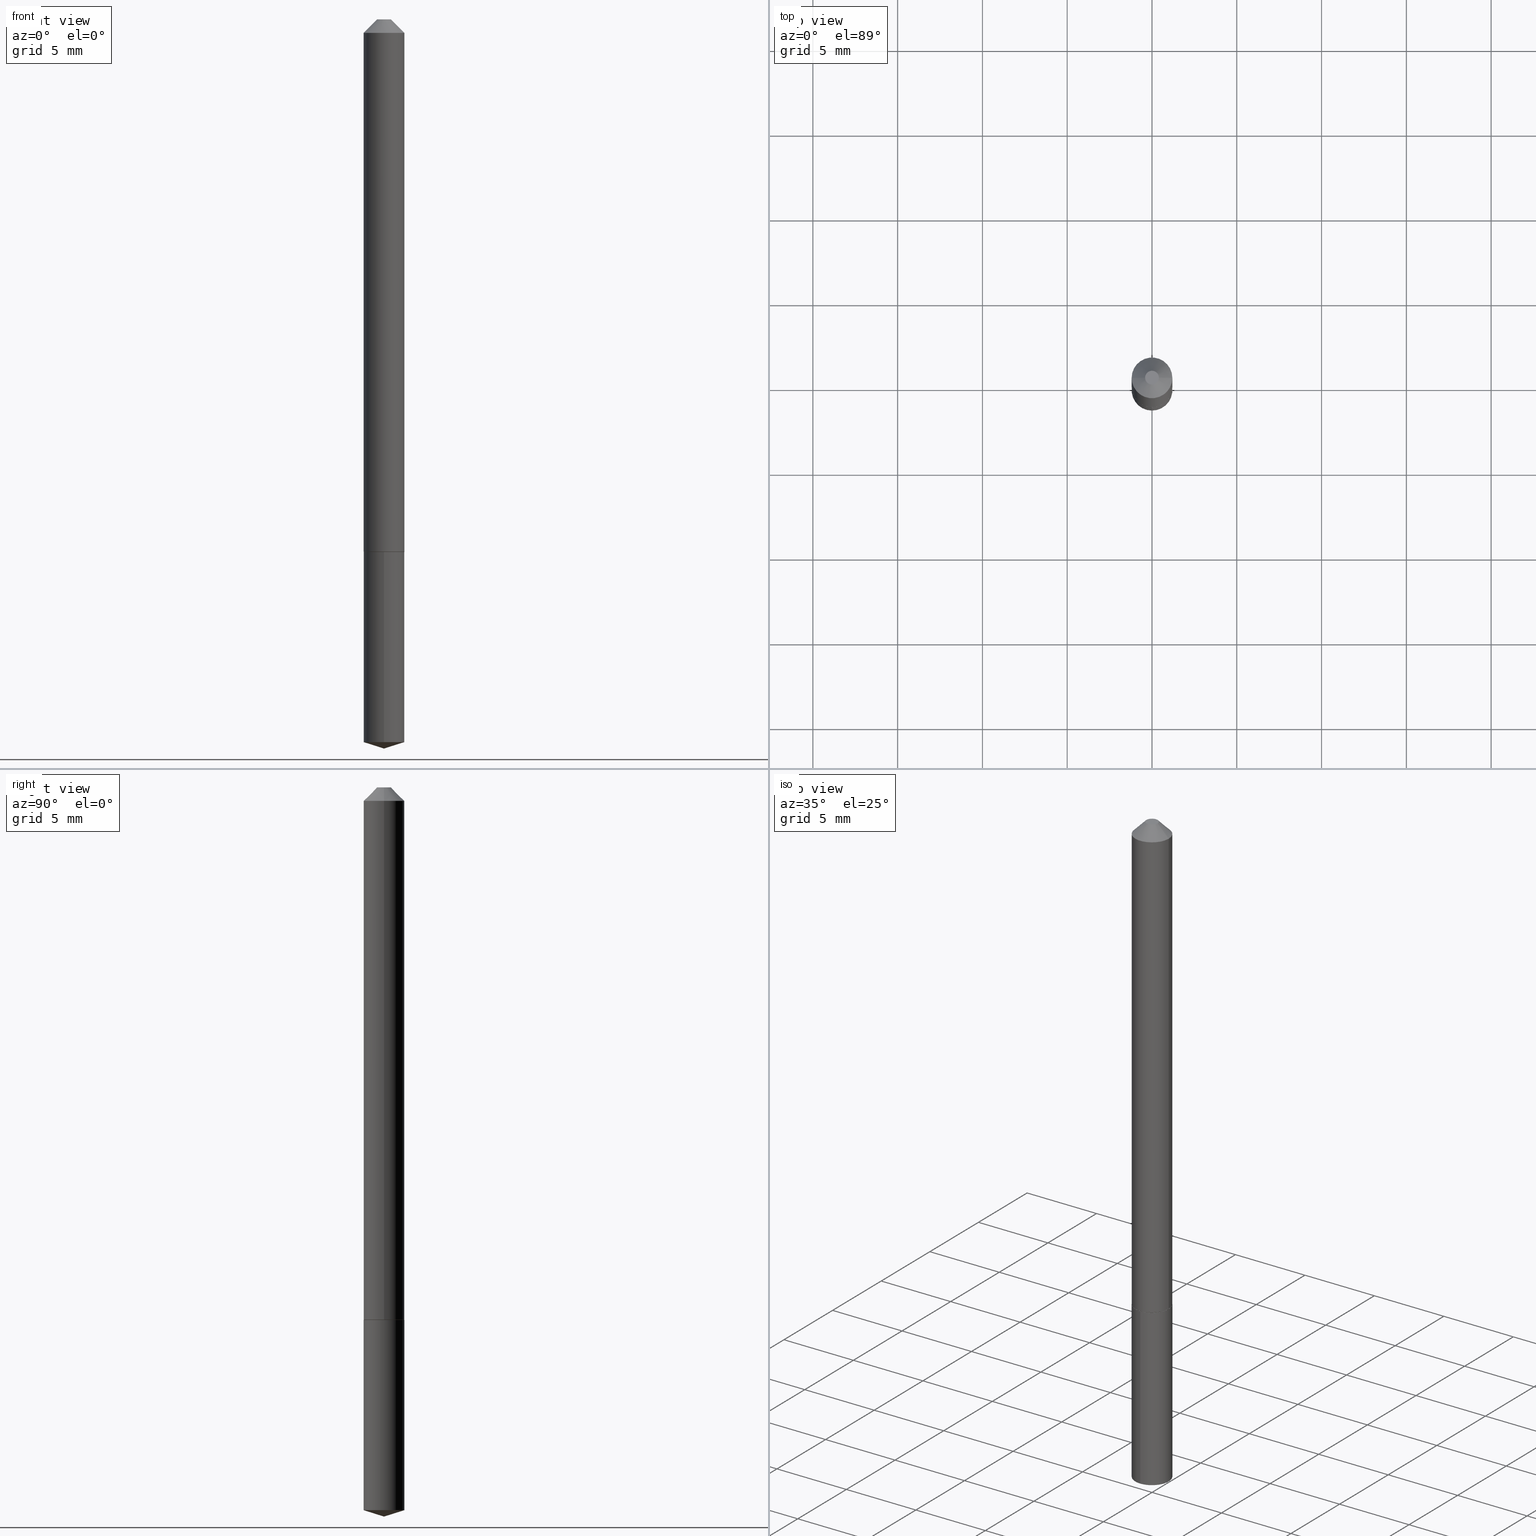
[diagram: canonical four-view strip — front | top / right | iso, engineering-drawing reading convention]
A machine part, canonical four-view strip (front | top / right | iso — engineering-drawing reading convention). The complete STEP part file that produces these views, byte-faithful:
ISO-10303-21;
HEADER;
FILE_DESCRIPTION (( 'STEP AP203' ),
    '1' );
FILE_NAME ('62059.STEP',
    '2024-04-23T05:19:33',
    ( '' ),
    ( '' ),
    'SwSTEP 2.0',
    'SolidWorks 2023',
    '' );
FILE_SCHEMA (( 'CONFIG_CONTROL_DESIGN' ));
ENDSEC;

DATA;
#1 = DIMENSIONAL_EXPONENTS ( 1.000000000000000000, 0.000000000000000000, 0.000000000000000000, 0.000000000000000000, 0.000000000000000000, 0.000000000000000000, 0.000000000000000000 ) ;
#2 = DIRECTION ( 'NONE',  ( 6.982962677686265922E-15, 1.000000000000000000, -3.491498537311690917E-15 ) ) ;
#3 = AXIS2_PLACEMENT_3D ( 'NONE', #358, #325, #177 ) ;
#4 = DIRECTION ( 'NONE',  ( -2.445456796558740002E-29, 3.491498537311690917E-15, 1.000000000000000000 ) ) ;
#5 = CARTESIAN_POINT ( 'NONE',  ( -3.299449865206457842E-16, -0.04725000000000431633, -1.236199999999999966 ) ) ;
#6 = ADVANCED_FACE ( 'NONE', ( #320 ), #53, .F. ) ;
#7 = CIRCLE ( 'NONE', #246, 0.04724999999999999339 ) ;
#8 = ORIENTED_EDGE ( 'NONE', *, *, #334, .T. ) ;
#9 = DIRECTION ( 'NONE',  ( 2.445456796558739722E-29, -3.491498537311690917E-15, -1.000000000000000000 ) ) ;
#10 = VERTEX_POINT ( 'NONE', #230 ) ;
#11 = CARTESIAN_POINT ( 'NONE',  ( 3.021865803802974359E-29, -4.314423490408476680E-15, -1.235700000000000465 ) ) ;
#12 = ORIENTED_EDGE ( 'NONE', *, *, #49, .F. ) ;
#13 = LOCAL_TIME ( 1, 19, 33.00000000000000000, #280 ) ;
#14 = ORIENTED_EDGE ( 'NONE', *, *, #327, .F. ) ;
#15 = ORIENTED_EDGE ( 'NONE', *, *, #297, .T. ) ;
#16 = EDGE_CURVE ( 'NONE', #10, #74, #29, .T. ) ;
#17 = CARTESIAN_POINT ( 'NONE',  ( -3.299449865206457842E-16, -0.04725000000000431633, -1.236199999999999966 ) ) ;
#18 = FACE_OUTER_BOUND ( 'NONE', #366, .T. ) ;
#19 = APPROVAL_PERSON_ORGANIZATION ( #324, #196, #388 ) ;
#20 = EDGE_CURVE ( 'NONE', #375, #41, #322, .T. ) ;
#21 = DIRECTION ( 'NONE',  ( 2.445468806185136597E-29, -3.491481338843145583E-15, -1.000000000000000000 ) ) ;
#22 = ADVANCED_FACE ( 'NONE', ( #55 ), #238, .T. ) ;
#23 = APPROVAL_STATUS ( 'not_yet_approved' ) ;
#24 = CARTESIAN_POINT ( 'NONE',  ( 3.023088538206066600E-29, -4.316169231077897395E-15, -1.236200000000000410 ) ) ;
#25 = CARTESIAN_POINT ( 'NONE',  ( 3.357314426466883117E-16, 0.04724999999999567740, -1.236200000000000632 ) ) ;
#26 = AXIS2_PLACEMENT_3D ( 'NONE', #372, #286, #279 ) ;
#27 = DATE_AND_TIME ( #31, #48 ) ;
#28 = ADVANCED_BREP_SHAPE_REPRESENTATION ( '62059', ( #273, #269, #26 ), #209 ) ;
#29 = LINE ( 'NONE', #169, #241 ) ;
#30 = FACE_OUTER_BOUND ( 'NONE', #139, .T. ) ;
#31 = CALENDAR_DATE ( 2024, 23, 4 ) ;
#32 = CARTESIAN_POINT ( 'NONE',  ( 7.642090019328602662E-31, -1.091087918388490267E-16, -0.03125000000000020817 ) ) ;
#33 = CARTESIAN_POINT ( 'NONE',  ( 3.023088538206066600E-29, -4.316169231077897395E-15, -1.236200000000000410 ) ) ;
#34 = DIRECTION ( 'NONE',  ( -2.445468806185136597E-29, 3.491481338843145583E-15, 1.000000000000000000 ) ) ;
#35 = VECTOR ( 'NONE', #46, 39.37007874015748143 ) ;
#36 = APPROVAL_PERSON_ORGANIZATION ( #131, #251, #374 ) ;
#37 = VERTEX_POINT ( 'NONE', #389 ) ;
#38 = EDGE_CURVE ( 'NONE', #97, #37, #161, .T. ) ;
#39 = ORIENTED_EDGE ( 'NONE', *, *, #285, .T. ) ;
#40 = DIRECTION ( 'NONE',  ( 1.000000000000000000, -6.982962677686266711E-15, 4.876172707875571814E-29 ) ) ;
#41 = VERTEX_POINT ( 'NONE', #258 ) ;
#42 = LENGTH_MEASURE_WITH_UNIT ( LENGTH_MEASURE( 0.02539999999999999897 ), #45 );
#43 = AXIS2_PLACEMENT_3D ( 'NONE', #353, #144, #108 ) ;
#44 = EDGE_LOOP ( 'NONE', ( #68, #208, #268 ) ) ;
#45 =( LENGTH_UNIT ( ) NAMED_UNIT ( * ) SI_UNIT ( $, .METRE. ) );
#46 = DIRECTION ( 'NONE',  ( 0.7071067811865414665, -2.468850131082193557E-15, 0.7071067811865535679 ) ) ;
#47 = DIRECTION ( 'NONE',  ( 1.000000000000000000, -6.982962677686266711E-15, 4.876176775795936353E-29 ) ) ;
#48 = LOCAL_TIME ( 1, 19, 33.00000000000000000, #295 ) ;
#49 = EDGE_CURVE ( 'NONE', #155, #183, #254, .T. ) ;
#50 = APPROVAL_DATE_TIME ( #317, #170 ) ;
#51 = DIRECTION ( 'NONE',  ( -1.000000000000000000, 6.982962677686266711E-15, 0.000000000000000000 ) ) ;
#52 = DATE_AND_TIME ( #307, #143 ) ;
#53 = PLANE ( 'NONE',  #57 ) ;
#54 = PRODUCT_DEFINITION_SHAPE ( 'NONE', 'NONE',  #321 ) ;
#55 = FACE_OUTER_BOUND ( 'NONE', #274, .T. ) ;
#56 = CIRCLE ( 'NONE', #135, 0.04725000000000000727 ) ;
#57 = AXIS2_PLACEMENT_3D ( 'NONE', #168, #291, #347 ) ;
#58 = DIRECTION ( 'NONE',  ( 1.000000000000000000, -6.982962677686264344E-15, 0.000000000000000000 ) ) ;
#59 = COORDINATED_UNIVERSAL_TIME_OFFSET ( 5, 0, .BEHIND. ) ;
#60 = CARTESIAN_POINT ( 'NONE',  ( -5.839929314523175409E-48, 8.337871319499082469E-34, 2.388061258337334140E-19 ) ) ;
#61 = LINE ( 'NONE', #231, #292 ) ;
#62 = EDGE_CURVE ( 'NONE', #132, #37, #218, .T. ) ;
#63 = CC_DESIGN_SECURITY_CLASSIFICATION ( #225, ( #182 ) ) ;
#64 = DIRECTION ( 'NONE',  ( -2.445456796558740002E-29, 3.491498537311690917E-15, 1.000000000000000000 ) ) ;
#65 = ORIENTED_EDGE ( 'NONE', *, *, #327, .T. ) ;
#66 = ORIENTED_EDGE ( 'NONE', *, *, #16, .F. ) ;
#67 = CIRCLE ( 'NONE', #386, 0.01599999999999999686 ) ;
#68 = ORIENTED_EDGE ( 'NONE', *, *, #20, .F. ) ;
#69 = DIRECTION ( 'NONE',  ( -2.445468806185136597E-29, 3.491481338843145583E-15, 1.000000000000000000 ) ) ;
#70 = EDGE_LOOP ( 'NONE', ( #12, #126 ) ) ;
#71 = DIRECTION ( 'NONE',  ( -2.445456796558740002E-29, 3.491498537311690917E-15, 1.000000000000000000 ) ) ;
#72 = EDGE_LOOP ( 'NONE', ( #66, #8, #330, #250 ) ) ;
#73 =( CONVERSION_BASED_UNIT ( 'INCH', #42 ) LENGTH_UNIT ( ) NAMED_UNIT ( #1 ) );
#74 = VERTEX_POINT ( 'NONE', #25 ) ;
#75 = CONICAL_SURFACE ( 'NONE', #261, 0.04725000000000015299, 0.7853981633974397303 ) ;
#76 = CIRCLE ( 'NONE', #310, 0.04675000000000025663 ) ;
#77 = DIRECTION ( 'NONE',  ( -2.445468806185136597E-29, 3.491481338843145583E-15, 1.000000000000000000 ) ) ;
#78 = DIRECTION ( 'NONE',  ( -2.445468806185136597E-29, 3.491481338843145583E-15, 1.000000000000000000 ) ) ;
#79 = ADVANCED_FACE ( 'NONE', ( #262 ), #124, .T. ) ;
#80 = DIRECTION ( 'NONE',  ( 1.000000000000000000, -6.982962677686264344E-15, 0.000000000000000000 ) ) ;
#81 = CYLINDRICAL_SURFACE ( 'NONE', #301, 0.04725000000000006972 ) ;
#82 = COORDINATED_UNIVERSAL_TIME_OFFSET ( 5, 0, .BEHIND. ) ;
#83 = FACE_OUTER_BOUND ( 'NONE', #248, .T. ) ;
#84 = AXIS2_PLACEMENT_3D ( 'NONE', #121, #9, #2 ) ;
#85 = AXIS2_PLACEMENT_3D ( 'NONE', #382, #171, #51 ) ;
#86 = DIRECTION ( 'NONE',  ( -2.445456796558740002E-29, 3.491498537311690917E-15, 1.000000000000000000 ) ) ;
#87 = DIRECTION ( 'NONE',  ( -1.000000000000000000, 6.982962677686266711E-15, 0.000000000000000000 ) ) ;
#88 = ADVANCED_FACE ( 'NONE', ( #83 ), #200, .T. ) ;
#89 = DIRECTION ( 'NONE',  ( -2.445468806185136877E-29, 3.491481338843145188E-15, 1.000000000000000000 ) ) ;
#90 = CIRCLE ( 'NONE', #228, 0.01599999999999999686 ) ;
#91 = DIRECTION ( 'NONE',  ( -2.445468806185136597E-29, 3.491481338843145583E-15, 1.000000000000000000 ) ) ;
#92 = EDGE_CURVE ( 'NONE', #183, #155, #76, .T. ) ;
#93 = DIRECTION ( 'NONE',  ( -6.982962677686265922E-15, -1.000000000000000000, 5.781688875479922944E-15 ) ) ;
#94 = VERTEX_POINT ( 'NONE', #293 ) ;
#95 = CONICAL_SURFACE ( 'NONE', #312, 0.04725000000000015299, 0.7853981633974397303 ) ;
#96 = EDGE_CURVE ( 'NONE', #155, #244, #191, .T. ) ;
#97 = VERTEX_POINT ( 'NONE', #284 ) ;
#98 = DIRECTION ( 'NONE',  ( -2.445468806185136597E-29, 3.491481338843145583E-15, 1.000000000000000000 ) ) ;
#99 = ORIENTED_EDGE ( 'NONE', *, *, #359, .F. ) ;
#100 = ORIENTED_EDGE ( 'NONE', *, *, #369, .F. ) ;
#101 = PRODUCT_RELATED_PRODUCT_CATEGORY ( 'detail', '', ( #112 ) ) ;
#102 = CALENDAR_DATE ( 2024, 23, 4 ) ;
#103 = ORIENTED_EDGE ( 'NONE', *, *, #190, .T. ) ;
#104 = ORIENTED_EDGE ( 'NONE', *, *, #62, .F. ) ;
#105 = ADVANCED_FACE ( 'NONE', ( #18 ), #136, .T. ) ;
#106 = ORIENTED_EDGE ( 'NONE', *, *, #233, .T. ) ;
#107 = PERSON_AND_ORGANIZATION ( #336, #287 ) ;
#108 = DIRECTION ( 'NONE',  ( 1.000000000000000000, -6.982962677686266711E-15, 0.000000000000000000 ) ) ;
#109 = PERSON_AND_ORGANIZATION ( #336, #287 ) ;
#110 = DIRECTION ( 'NONE',  ( 0.7071067811865452413, -7.319954787623248157E-15, -0.7071067811865497932 ) ) ;
#111 = VECTOR ( 'NONE', #198, 39.37007874015748854 ) ;
#112 = PRODUCT ( '62059', '62059', '', ( #247 ) ) ;
#113 = PERSON_AND_ORGANIZATION_ROLE ( 'design_supplier' ) ;
#114 = CARTESIAN_POINT ( 'NONE',  ( 7.642090019328602662E-31, -1.091087918388490267E-16, -0.03125000000000020817 ) ) ;
#115 = DIRECTION ( 'NONE',  ( -2.445468806185136597E-29, 3.491481338843145583E-15, 1.000000000000000000 ) ) ;
#116 = ADVANCED_FACE ( 'NONE', ( #220 ), #81, .T. ) ;
#117 = CARTESIAN_POINT ( 'NONE',  ( -0.01599999999999999686, 1.662817987624036876E-16, 2.388061258327615898E-19 ) ) ;
#118 = VECTOR ( 'NONE', #243, 39.37007874015748143 ) ;
#119 = LINE ( 'NONE', #236, #302 ) ;
#120 = EDGE_CURVE ( 'NONE', #94, #97, #288, .T. ) ;
#121 = CARTESIAN_POINT ( 'NONE',  ( 3.023088538206066600E-29, -4.316169231077897395E-15, -1.236200000000000410 ) ) ;
#122 = VECTOR ( 'NONE', #110, 39.37007874015748143 ) ;
#123 = LOCAL_TIME ( 1, 19, 33.00000000000000000, #82 ) ;
#124 = CONICAL_SURFACE ( 'NONE', #387, 0.04725000000000000727, 0.7853981633974450594 ) ;
#125 = CC_DESIGN_PERSON_AND_ORGANIZATION_ASSIGNMENT ( #109, #226, ( #182 ) ) ;
#126 = ORIENTED_EDGE ( 'NONE', *, *, #92, .F. ) ;
#127 = DIRECTION ( 'NONE',  ( 2.438088387897960049E-29, -3.491481338843145188E-15, -1.000000000000000000 ) ) ;
#128 = CIRCLE ( 'NONE', #371, 0.04725000000000015299 ) ;
#129 = CC_DESIGN_DATE_AND_TIME_ASSIGNMENT ( #27, #381, ( #225 ) ) ;
#130 = ORIENTED_EDGE ( 'NONE', *, *, #20, .T. ) ;
#131 = PERSON_AND_ORGANIZATION ( #336, #287 ) ;
#132 = VERTEX_POINT ( 'NONE', #117 ) ;
#133 = ORIENTED_EDGE ( 'NONE', *, *, #350, .T. ) ;
#134 = PERSON_AND_ORGANIZATION ( #336, #287 ) ;
#135 = AXIS2_PLACEMENT_3D ( 'NONE', #32, #184, #277 ) ;
#136 = CYLINDRICAL_SURFACE ( 'NONE', #207, 0.04724999999999999339 ) ;
#137 = AXIS2_PLACEMENT_3D ( 'NONE', #33, #275, #93 ) ;
#138 = CARTESIAN_POINT ( 'NONE',  ( 4.103496565190980497E-29, -5.858720729524305573E-15, -1.678002132225468346 ) ) ;
#139 = EDGE_LOOP ( 'NONE', ( #15, #260 ) ) ;
#140 = CARTESIAN_POINT ( 'NONE',  ( 3.023088538206066600E-29, -4.316169231077897395E-15, -1.236200000000000410 ) ) ;
#141 = CARTESIAN_POINT ( 'NONE',  ( 3.023088538206066600E-29, -4.316169231077897395E-15, -1.236200000000000410 ) ) ;
#142 = EDGE_CURVE ( 'NONE', #94, #132, #90, .T. ) ;
#143 = LOCAL_TIME ( 1, 19, 33.00000000000000000, #338 ) ;
#144 = DIRECTION ( 'NONE',  ( -2.445468806185136597E-29, 3.491481338843145583E-15, 1.000000000000000000 ) ) ;
#145 = APPLICATION_CONTEXT ( 'configuration controlled 3d designs of mechanical parts and assemblies' ) ;
#146 = DIRECTION ( 'NONE',  ( -6.982962677686265922E-15, -1.000000000000000000, 5.781688875479922944E-15 ) ) ;
#147 = CC_DESIGN_PERSON_AND_ORGANIZATION_ASSIGNMENT ( #134, #211, ( #112 ) ) ;
#148 = PLANE ( 'NONE',  #84 ) ;
#149 = CIRCLE ( 'NONE', #378, 0.04724999999999999339 ) ;
#150 = CARTESIAN_POINT ( 'NONE',  ( -5.839929314523175409E-48, 8.337871319499082469E-34, 2.388061258337334140E-19 ) ) ;
#151 = VERTEX_POINT ( 'NONE', #355 ) ;
#152 = VECTOR ( 'NONE', #64, 39.37007874015748143 ) ;
#153 = CLOSED_SHELL ( 'NONE', ( #105, #257, #88, #263, #221 ) ) ;
#154 = PLANE ( 'NONE',  #365 ) ;
#155 = VERTEX_POINT ( 'NONE', #335 ) ;
#156 = DIRECTION ( 'NONE',  ( -2.445456796558740002E-29, 3.491498537311690917E-15, 1.000000000000000000 ) ) ;
#157 = CC_DESIGN_PERSON_AND_ORGANIZATION_ASSIGNMENT ( #304, #245, ( #321 ) ) ;
#158 = ORIENTED_EDGE ( 'NONE', *, *, #319, .F. ) ;
#159 = CARTESIAN_POINT ( 'NONE',  ( 3.023088538206066600E-29, -4.316169231077897395E-15, -1.236200000000000410 ) ) ;
#160 = ORIENTED_EDGE ( 'NONE', *, *, #190, .F. ) ;
#161 = CIRCLE ( 'NONE', #43, 0.04725000000000000727 ) ;
#162 = DATE_AND_TIME ( #102, #13 ) ;
#163 = ORIENTED_EDGE ( 'NONE', *, *, #120, .F. ) ;
#164 =( NAMED_UNIT ( * ) PLANE_ANGLE_UNIT ( ) SI_UNIT ( $, .RADIAN. ) );
#165 = ORIENTED_EDGE ( 'NONE', *, *, #334, .F. ) ;
#166 = ADVANCED_FACE ( 'NONE', ( #178 ), #95, .T. ) ;
#167 = AXIS2_PLACEMENT_3D ( 'NONE', #294, #4, #235 ) ;
#168 = CARTESIAN_POINT ( 'NONE',  ( 3.023088538206066600E-29, -4.316169231077897395E-15, -1.236200000000000410 ) ) ;
#169 = CARTESIAN_POINT ( 'NONE',  ( 3.357314426466774648E-16, 0.04724999999999567740, -1.236200000000000632 ) ) ;
#170 = APPROVAL ( #222, 'UNSPECIFIED' ) ;
#171 = DIRECTION ( 'NONE',  ( 2.445468806185136597E-29, -3.491481338843145583E-15, -1.000000000000000000 ) ) ;
#172 = CARTESIAN_POINT ( 'NONE',  ( -9.213789797897643775E-28, 1.315498357220377884E-13, 37.67717874015747981 ) ) ;
#173 = CIRCLE ( 'NONE', #201, 0.04724999999999999339 ) ;
#174 = FACE_OUTER_BOUND ( 'NONE', #44, .T. ) ;
#175 = EDGE_CURVE ( 'NONE', #41, #10, #7, .T. ) ;
#176 = PERSON_AND_ORGANIZATION_ROLE ( 'classification_officer' ) ;
#177 = DIRECTION ( 'NONE',  ( -6.982962677686267499E-15, -1.000000000000000000, 3.500519750498671300E-15 ) ) ;
#178 = FACE_OUTER_BOUND ( 'NONE', #333, .T. ) ;
#179 = LINE ( 'NONE', #300, #118 ) ;
#180 = CC_DESIGN_PERSON_AND_ORGANIZATION_ASSIGNMENT ( #352, #113, ( #182 ) ) ;
#181 = ORIENTED_EDGE ( 'NONE', *, *, #142, .F. ) ;
#182 = PRODUCT_DEFINITION_FORMATION_WITH_SPECIFIED_SOURCE ( 'ANY', '', #112, .NOT_KNOWN. ) ;
#183 = VERTEX_POINT ( 'NONE', #203 ) ;
#184 = DIRECTION ( 'NONE',  ( -2.445468806185136597E-29, 3.491481338843145583E-15, 1.000000000000000000 ) ) ;
#185 = ORIENTED_EDGE ( 'NONE', *, *, #92, .T. ) ;
#186 = DIRECTION ( 'NONE',  ( -2.445456796558740002E-29, 3.491498537311690917E-15, 1.000000000000000000 ) ) ;
#187 = ORIENTED_EDGE ( 'NONE', *, *, #297, .F. ) ;
#188 = AXIS2_PLACEMENT_3D ( 'NONE', #213, #342, #345 ) ;
#189 = ORIENTED_EDGE ( 'NONE', *, *, #359, .T. ) ;
#190 = EDGE_CURVE ( 'NONE', #244, #151, #128, .T. ) ;
#191 = LINE ( 'NONE', #314, #35 ) ;
#192 = EDGE_LOOP ( 'NONE', ( #133, #39 ) ) ;
#193 = CALENDAR_DATE ( 2024, 23, 4 ) ;
#194 = CIRCLE ( 'NONE', #356, 0.04725000000000015299 ) ;
#195 = DIRECTION ( 'NONE',  ( -6.982962677686267499E-15, -1.000000000000000000, 3.500519750498671300E-15 ) ) ;
#196 = APPROVAL ( #23, 'UNSPECIFIED' ) ;
#197 = CARTESIAN_POINT ( 'NONE',  ( 0.000000000000000000, 0.000000000000000000, 0.000000000000000000 ) ) ;
#198 = DIRECTION ( 'NONE',  ( -6.659769872151637611E-15, -0.9537169507482274877, 0.3007057995042712317 ) ) ;
#199 = CARTESIAN_POINT ( 'NONE',  ( -2.919964657261587705E-48, 4.168935659749541235E-34, 1.194030629168667070E-19 ) ) ;
#200 = CONICAL_SURFACE ( 'NONE', #364, 124.8659371009162413, 1.265363707695894346 ) ;
#201 = AXIS2_PLACEMENT_3D ( 'NONE', #159, #186, #282 ) ;
#202 = CLOSED_SHELL ( 'NONE', ( #79, #332, #166, #6, #271, #116, #22, #237 ) ) ;
#203 = CARTESIAN_POINT ( 'NONE',  ( -0.04675000000000025663, -3.981341274935938865E-15, -1.236200000000000410 ) ) ;
#204 = ORIENTED_EDGE ( 'NONE', *, *, #224, .T. ) ;
#205 = DIRECTION ( 'NONE',  ( 1.000000000000000000, -6.982962677686264344E-15, 0.000000000000000000 ) ) ;
#206 = DIRECTION ( 'NONE',  ( 1.000000000000000000, -6.982962677686264344E-15, 0.000000000000000000 ) ) ;
#207 = AXIS2_PLACEMENT_3D ( 'NONE', #140, #86, #349 ) ;
#208 = ORIENTED_EDGE ( 'NONE', *, *, #369, .T. ) ;
#209 =( GEOMETRIC_REPRESENTATION_CONTEXT ( 3 ) GLOBAL_UNCERTAINTY_ASSIGNED_CONTEXT ( ( #240 ) ) GLOBAL_UNIT_ASSIGNED_CONTEXT ( ( #73, #164, #215 ) ) REPRESENTATION_CONTEXT ( 'NONE', 'WORKASPACE' ) );
#210 = DIRECTION ( 'NONE',  ( -0.7071067811865414665, 7.493145998870332072E-15, 0.7071067811865535679 ) ) ;
#211 = PERSON_AND_ORGANIZATION_ROLE ( 'design_owner' ) ;
#212 = ORIENTED_EDGE ( 'NONE', *, *, #350, .F. ) ;
#213 = CARTESIAN_POINT ( 'NONE',  ( 0.000000000000000000, 0.000000000000000000, 0.000000000000000000 ) ) ;
#214 = ORIENTED_EDGE ( 'NONE', *, *, #38, .T. ) ;
#215 =( NAMED_UNIT ( * ) SI_UNIT ( $, .STERADIAN. ) SOLID_ANGLE_UNIT ( ) );
#216 = EDGE_CURVE ( 'NONE', #37, #97, #56, .T. ) ;
#217 = CIRCLE ( 'NONE', #137, 0.04724999999999999339 ) ;
#218 = LINE ( 'NONE', #223, #377 ) ;
#219 = CYLINDRICAL_SURFACE ( 'NONE', #188, 0.04725000000000006972 ) ;
#220 = FACE_OUTER_BOUND ( 'NONE', #318, .T. ) ;
#221 = ADVANCED_FACE ( 'NONE', ( #265 ), #148, .F. ) ;
#222 = APPROVAL_STATUS ( 'not_yet_approved' ) ;
#223 = CARTESIAN_POINT ( 'NONE',  ( -0.04725000000000000727, 2.208361946818271286E-16, -0.03125000000000020817 ) ) ;
#224 = EDGE_CURVE ( 'NONE', #151, #37, #61, .T. ) ;
#225 = SECURITY_CLASSIFICATION ( '', '', #229 ) ;
#226 = PERSON_AND_ORGANIZATION_ROLE ( 'creator' ) ;
#227 = EDGE_LOOP ( 'NONE', ( #103, #204, #343, #14 ) ) ;
#228 = AXIS2_PLACEMENT_3D ( 'NONE', #60, #98, #40 ) ;
#229 = SECURITY_CLASSIFICATION_LEVEL ( 'unclassified' ) ;
#230 = CARTESIAN_POINT ( 'NONE',  ( 3.357314426466882624E-16, 0.04724999999999413003, -1.678002132225468790 ) ) ;
#231 = CARTESIAN_POINT ( 'NONE',  ( -0.04725000000000006972, 3.357314426466478332E-16, -2.324196830145446318E-30 ) ) ;
#232 = DESIGN_CONTEXT ( 'detailed design', #145, 'design' ) ;
#233 = EDGE_CURVE ( 'NONE', #183, #151, #119, .T. ) ;
#234 = DIRECTION ( 'NONE',  ( -1.000000000000000000, 6.982962677686265922E-15, -4.876176775795935793E-29 ) ) ;
#235 = DIRECTION ( 'NONE',  ( -6.982962677686265922E-15, -1.000000000000000000, 5.781688875479922944E-15 ) ) ;
#236 = CARTESIAN_POINT ( 'NONE',  ( -0.04725000000000015299, -3.978692047761827664E-15, -1.235700000000000465 ) ) ;
#237 = ADVANCED_FACE ( 'NONE', ( #30 ), #154, .F. ) ;
#238 = CONICAL_SURFACE ( 'NONE', #85, 0.04725000000000000727, 0.7853981633974450594 ) ;
#239 = CC_DESIGN_APPROVAL ( #196, ( #182 ) ) ;
#240 = UNCERTAINTY_MEASURE_WITH_UNIT (LENGTH_MEASURE( 1.000000000000000082E-05 ), #73, 'distance_accuracy_value', 'NONE');
#241 = VECTOR ( 'NONE', #354, 39.37007874015748143 ) ;
#242 = PERSON_AND_ORGANIZATION ( #336, #287 ) ;
#243 = DIRECTION ( 'NONE',  ( -2.445468806185136877E-29, 3.491481338843145188E-15, 1.000000000000000000 ) ) ;
#244 = VERTEX_POINT ( 'NONE', #323 ) ;
#245 = PERSON_AND_ORGANIZATION_ROLE ( 'creator' ) ;
#246 = AXIS2_PLACEMENT_3D ( 'NONE', #296, #156, #146 ) ;
#247 = MECHANICAL_CONTEXT ( 'NONE', #283, 'mechanical' ) ;
#248 = EDGE_LOOP ( 'NONE', ( #100, #130, #165 ) ) ;
#249 = APPROVAL_STATUS ( 'not_yet_approved' ) ;
#250 = ORIENTED_EDGE ( 'NONE', *, *, #285, .F. ) ;
#251 = APPROVAL ( #249, 'UNSPECIFIED' ) ;
#252 = LINE ( 'NONE', #308, #272 ) ;
#253 = DIRECTION ( 'NONE',  ( -6.982962677686265922E-15, -1.000000000000000000, 5.781688875479922944E-15 ) ) ;
#254 = CIRCLE ( 'NONE', #351, 0.04675000000000025663 ) ;
#255 = CC_DESIGN_APPROVAL ( #251, ( #321 ) ) ;
#256 = DIRECTION ( 'NONE',  ( -2.445456796558740002E-29, 3.491498537311690917E-15, 1.000000000000000000 ) ) ;
#257 = ADVANCED_FACE ( 'NONE', ( #174 ), #311, .T. ) ;
#258 = CARTESIAN_POINT ( 'NONE',  ( -3.299449865206349866E-16, -0.04725000000000584288, -1.678002132225468124 ) ) ;
#259 = CALENDAR_DATE ( 2024, 23, 4 ) ;
#260 = ORIENTED_EDGE ( 'NONE', *, *, #142, .T. ) ;
#261 = AXIS2_PLACEMENT_3D ( 'NONE', #298, #91, #205 ) ;
#262 = FACE_OUTER_BOUND ( 'NONE', #363, .T. ) ;
#263 = ADVANCED_FACE ( 'NONE', ( #362 ), #266, .T. ) ;
#264 = DIRECTION ( 'NONE',  ( -0.7071067811865452413, 2.468850131082233000E-15, -0.7071067811865497932 ) ) ;
#265 = FACE_OUTER_BOUND ( 'NONE', #192, .T. ) ;
#266 = CYLINDRICAL_SURFACE ( 'NONE', #167, 0.04724999999999999339 ) ;
#267 = APPROVAL_PERSON_ORGANIZATION ( #107, #170, #348 ) ;
#268 = ORIENTED_EDGE ( 'NONE', *, *, #175, .F. ) ;
#269 = MANIFOLD_SOLID_BREP ( 'Body-Move/Copy2[2]', #202 ) ;
#270 = DIRECTION ( 'NONE',  ( 1.000000000000000000, -6.982962677686266711E-15, 4.876172707875571814E-29 ) ) ;
#271 = ADVANCED_FACE ( 'NONE', ( #361 ), #75, .T. ) ;
#272 = VECTOR ( 'NONE', #313, 39.37007874015748143 ) ;
#273 = MANIFOLD_SOLID_BREP ( 'Body-Move/Copy2[1]', #153 ) ;
#274 = EDGE_LOOP ( 'NONE', ( #163, #187, #341, #303 ) ) ;
#275 = DIRECTION ( 'NONE',  ( -2.445456796558740002E-29, 3.491498537311690917E-15, 1.000000000000000000 ) ) ;
#276 = ORIENTED_EDGE ( 'NONE', *, *, #216, .F. ) ;
#277 = DIRECTION ( 'NONE',  ( 1.000000000000000000, -6.982962677686266711E-15, 0.000000000000000000 ) ) ;
#278 = ORIENTED_EDGE ( 'NONE', *, *, #96, .T. ) ;
#279 = DIRECTION ( 'NONE',  ( 1.000000000000000000, 0.000000000000000000, 0.000000000000000000 ) ) ;
#280 = COORDINATED_UNIVERSAL_TIME_OFFSET ( 5, 0, .BEHIND. ) ;
#281 = ORIENTED_EDGE ( 'NONE', *, *, #233, .F. ) ;
#282 = DIRECTION ( 'NONE',  ( -6.982962677686265922E-15, -1.000000000000000000, 5.781688875479922944E-15 ) ) ;
#283 = APPLICATION_CONTEXT ( 'configuration controlled 3d designs of mechanical parts and assemblies' ) ;
#284 = CARTESIAN_POINT ( 'NONE',  ( 0.04725000000000000727, -4.390537783595251574E-16, -0.03125000000000020817 ) ) ;
#285 = EDGE_CURVE ( 'NONE', #74, #367, #217, .T. ) ;
#286 = DIRECTION ( 'NONE',  ( 0.000000000000000000, 0.000000000000000000, 1.000000000000000000 ) ) ;
#287 = ORGANIZATION ( 'UNSPECIFIED', 'UNSPECIFIED', '' ) ;
#288 = LINE ( 'NONE', #384, #122 ) ;
#289 = SHAPE_DEFINITION_REPRESENTATION ( #54, #28 ) ;
#290 = DIRECTION ( 'NONE',  ( 1.000000000000000000, -6.982962677686258822E-15, 0.000000000000000000 ) ) ;
#291 = DIRECTION ( 'NONE',  ( -2.438088387897960049E-29, 3.491481338843145188E-15, 1.000000000000000000 ) ) ;
#292 = VECTOR ( 'NONE', #89, 39.37007874015748143 ) ;
#293 = CARTESIAN_POINT ( 'NONE',  ( 0.01599999999999999686, -2.715176450989491922E-16, 2.388061258350727057E-19 ) ) ;
#294 = CARTESIAN_POINT ( 'NONE',  ( 3.023088538206066600E-29, -4.316169231077897395E-15, -1.236200000000000410 ) ) ;
#295 = COORDINATED_UNIVERSAL_TIME_OFFSET ( 5, 0, .BEHIND. ) ;
#296 = CARTESIAN_POINT ( 'NONE',  ( 4.103496565190980497E-29, -5.858720729524305573E-15, -1.678002132225468346 ) ) ;
#297 = EDGE_CURVE ( 'NONE', #132, #94, #67, .T. ) ;
#298 = CARTESIAN_POINT ( 'NONE',  ( 3.021865803802974359E-29, -4.314423490408476680E-15, -1.235700000000000465 ) ) ;
#299 = LOCAL_TIME ( 1, 19, 33.00000000000000000, #59 ) ;
#300 = CARTESIAN_POINT ( 'NONE',  ( 0.04725000000000006972, -3.299449865206765991E-16, 2.303993526563583334E-30 ) ) ;
#301 = AXIS2_PLACEMENT_3D ( 'NONE', #197, #316, #47 ) ;
#302 = VECTOR ( 'NONE', #210, 39.37007874015748143 ) ;
#303 = ORIENTED_EDGE ( 'NONE', *, *, #216, .T. ) ;
#304 = PERSON_AND_ORGANIZATION ( #336, #287 ) ;
#305 = CARTESIAN_POINT ( 'NONE',  ( 3.021865803802974359E-29, -4.314423490408476680E-15, -1.235700000000000465 ) ) ;
#306 = ORIENTED_EDGE ( 'NONE', *, *, #224, .F. ) ;
#307 = CALENDAR_DATE ( 2024, 23, 4 ) ;
#308 = CARTESIAN_POINT ( 'NONE',  ( 4.139943763863649389E-29, -5.910715352321330478E-15, -1.692900000000000071 ) ) ;
#309 = ORIENTED_EDGE ( 'NONE', *, *, #16, .T. ) ;
#310 = AXIS2_PLACEMENT_3D ( 'NONE', #24, #380, #346 ) ;
#311 = CONICAL_SURFACE ( 'NONE', #3, 124.8659371009162413, 1.265363707695894346 ) ;
#312 = AXIS2_PLACEMENT_3D ( 'NONE', #328, #69, #58 ) ;
#313 = DIRECTION ( 'NONE',  ( 6.776566513254262871E-15, 0.9537169507482295971, 0.3007057995042646259 ) ) ;
#314 = CARTESIAN_POINT ( 'NONE',  ( 0.04725000000000015299, -4.644368476929153477E-15, -1.235700000000000465 ) ) ;
#315 = APPLICATION_PROTOCOL_DEFINITION ( 'international standard', 'config_control_design', 1994, #283 ) ;
#316 = DIRECTION ( 'NONE',  ( -2.445468806185136597E-29, 3.491481338843145583E-15, 1.000000000000000000 ) ) ;
#317 = DATE_AND_TIME ( #193, #123 ) ;
#318 = EDGE_LOOP ( 'NONE', ( #306, #189, #65, #276 ) ) ;
#319 = EDGE_CURVE ( 'NONE', #41, #367, #329, .T. ) ;
#320 = FACE_OUTER_BOUND ( 'NONE', #70, .T. ) ;
#321 = PRODUCT_DEFINITION ( 'UNKNOWN', '', #182, #232 ) ;
#322 = LINE ( 'NONE', #390, #111 ) ;
#323 = CARTESIAN_POINT ( 'NONE',  ( 0.04725000000000015299, -4.644368476929153477E-15, -1.235700000000000465 ) ) ;
#324 = PERSON_AND_ORGANIZATION ( #336, #287 ) ;
#325 = DIRECTION ( 'NONE',  ( -2.445456796558740002E-29, 3.491498537311690917E-15, 1.000000000000000000 ) ) ;
#326 = ORIENTED_EDGE ( 'NONE', *, *, #49, .T. ) ;
#327 = EDGE_CURVE ( 'NONE', #244, #97, #179, .T. ) ;
#328 = CARTESIAN_POINT ( 'NONE',  ( 3.021865803802974359E-29, -4.314423490408476680E-15, -1.235700000000000465 ) ) ;
#329 = LINE ( 'NONE', #5, #152 ) ;
#330 = ORIENTED_EDGE ( 'NONE', *, *, #319, .T. ) ;
#331 = APPROVAL_DATE_TIME ( #162, #251 ) ;
#332 = ADVANCED_FACE ( 'NONE', ( #368 ), #219, .T. ) ;
#333 = EDGE_LOOP ( 'NONE', ( #326, #106, #160, #337 ) ) ;
#334 = EDGE_CURVE ( 'NONE', #10, #41, #149, .T. ) ;
#335 = CARTESIAN_POINT ( 'NONE',  ( 0.04675000000000025663, -4.642622736259731973E-15, -1.236200000000000410 ) ) ;
#336 = PERSON ( 'UNSPECIFIED', 'UNSPECIFIED', 'UNSPECIFIED', ('UNSPECIFIED'), ('UNSPECIFIED'), ('UNSPECIFIED') ) ;
#337 = ORIENTED_EDGE ( 'NONE', *, *, #96, .F. ) ;
#338 = COORDINATED_UNIVERSAL_TIME_OFFSET ( 5, 0, .BEHIND. ) ;
#339 = CC_DESIGN_DATE_AND_TIME_ASSIGNMENT ( #52, #357, ( #321 ) ) ;
#340 = APPLICATION_PROTOCOL_DEFINITION ( 'international standard', 'config_control_design', 1994, #145 ) ;
#341 = ORIENTED_EDGE ( 'NONE', *, *, #62, .T. ) ;
#342 = DIRECTION ( 'NONE',  ( -2.445468806185136597E-29, 3.491481338843145583E-15, 1.000000000000000000 ) ) ;
#343 = ORIENTED_EDGE ( 'NONE', *, *, #38, .F. ) ;
#344 = CC_DESIGN_APPROVAL ( #170, ( #225 ) ) ;
#345 = DIRECTION ( 'NONE',  ( 1.000000000000000000, -6.982962677686266711E-15, 4.876176775795936353E-29 ) ) ;
#346 = DIRECTION ( 'NONE',  ( 1.000000000000000000, -6.982962677686258822E-15, 0.000000000000000000 ) ) ;
#347 = DIRECTION ( 'NONE',  ( 1.000000000000000000, -6.982962677686265922E-15, 4.876176775795935793E-29 ) ) ;
#348 = APPROVAL_ROLE ( '' ) ;
#349 = DIRECTION ( 'NONE',  ( -6.982962677686265922E-15, -1.000000000000000000, 5.781688875479922944E-15 ) ) ;
#350 = EDGE_CURVE ( 'NONE', #367, #74, #173, .T. ) ;
#351 = AXIS2_PLACEMENT_3D ( 'NONE', #141, #78, #290 ) ;
#352 = PERSON_AND_ORGANIZATION ( #336, #287 ) ;
#353 = CARTESIAN_POINT ( 'NONE',  ( 7.642090019328602662E-31, -1.091087918388490267E-16, -0.03125000000000020817 ) ) ;
#354 = DIRECTION ( 'NONE',  ( -2.445456796558740002E-29, 3.491498537311690917E-15, 1.000000000000000000 ) ) ;
#355 = CARTESIAN_POINT ( 'NONE',  ( -0.04725000000000015299, -3.978692047761827664E-15, -1.235700000000000465 ) ) ;
#356 = AXIS2_PLACEMENT_3D ( 'NONE', #11, #77, #80 ) ;
#357 = DATE_TIME_ROLE ( 'creation_date' ) ;
#358 = CARTESIAN_POINT ( 'NONE',  ( -9.213789797897643775E-28, 1.315498357220377884E-13, 37.67717874015747981 ) ) ;
#359 = EDGE_CURVE ( 'NONE', #151, #244, #194, .T. ) ;
#360 = DATE_AND_TIME ( #259, #299 ) ;
#361 = FACE_OUTER_BOUND ( 'NONE', #370, .T. ) ;
#362 = FACE_OUTER_BOUND ( 'NONE', #72, .T. ) ;
#363 = EDGE_LOOP ( 'NONE', ( #181, #373, #214, #104 ) ) ;
#364 = AXIS2_PLACEMENT_3D ( 'NONE', #172, #256, #195 ) ;
#365 = AXIS2_PLACEMENT_3D ( 'NONE', #199, #127, #234 ) ;
#366 = EDGE_LOOP ( 'NONE', ( #376, #309, #212, #158 ) ) ;
#367 = VERTEX_POINT ( 'NONE', #17 ) ;
#368 = FACE_OUTER_BOUND ( 'NONE', #227, .T. ) ;
#369 = EDGE_CURVE ( 'NONE', #375, #10, #252, .T. ) ;
#370 = EDGE_LOOP ( 'NONE', ( #281, #185, #278, #99 ) ) ;
#371 = AXIS2_PLACEMENT_3D ( 'NONE', #305, #115, #206 ) ;
#372 = CARTESIAN_POINT ( 'NONE',  ( 0.000000000000000000, 0.000000000000000000, 0.000000000000000000 ) ) ;
#373 = ORIENTED_EDGE ( 'NONE', *, *, #120, .T. ) ;
#374 = APPROVAL_ROLE ( '' ) ;
#375 = VERTEX_POINT ( 'NONE', #379 ) ;
#376 = ORIENTED_EDGE ( 'NONE', *, *, #175, .T. ) ;
#377 = VECTOR ( 'NONE', #264, 39.37007874015748143 ) ;
#378 = AXIS2_PLACEMENT_3D ( 'NONE', #138, #71, #253 ) ;
#379 = CARTESIAN_POINT ( 'NONE',  ( 4.139913810894291037E-29, -5.910757873814962315E-15, -1.692900000000000071 ) ) ;
#380 = DIRECTION ( 'NONE',  ( -2.445468806185136597E-29, 3.491481338843145583E-15, 1.000000000000000000 ) ) ;
#381 = DATE_TIME_ROLE ( 'classification_date' ) ;
#382 = CARTESIAN_POINT ( 'NONE',  ( 7.642090019328602662E-31, -1.091087918388490267E-16, -0.03125000000000020817 ) ) ;
#383 = APPROVAL_DATE_TIME ( #360, #196 ) ;
#384 = CARTESIAN_POINT ( 'NONE',  ( 0.04725000000000000727, -4.332673222335539232E-16, -0.03125000000000020817 ) ) ;
#385 = CC_DESIGN_PERSON_AND_ORGANIZATION_ASSIGNMENT ( #242, #176, ( #225 ) ) ;
#386 = AXIS2_PLACEMENT_3D ( 'NONE', #150, #34, #270 ) ;
#387 = AXIS2_PLACEMENT_3D ( 'NONE', #114, #21, #87 ) ;
#388 = APPROVAL_ROLE ( '' ) ;
#389 = CARTESIAN_POINT ( 'NONE',  ( -0.04725000000000000727, -1.876034698477013480E-15, -0.03125000000000020817 ) ) ;
#390 = CARTESIAN_POINT ( 'NONE',  ( 4.139913810894291037E-29, -5.910757873814962315E-15, -1.692900000000000071 ) ) ;
ENDSEC;
END-ISO-10303-21;
